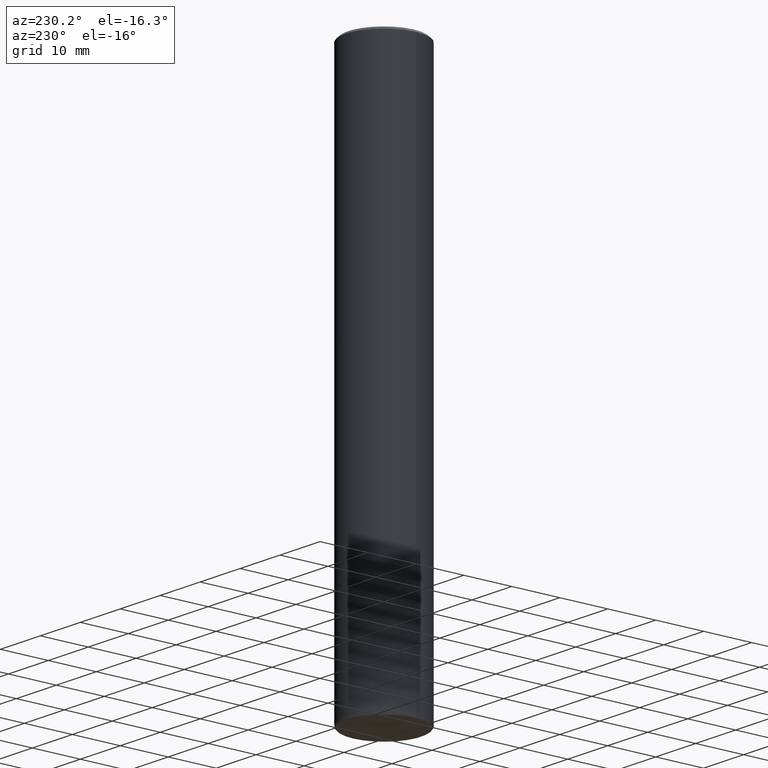
[diagram: clean part render]
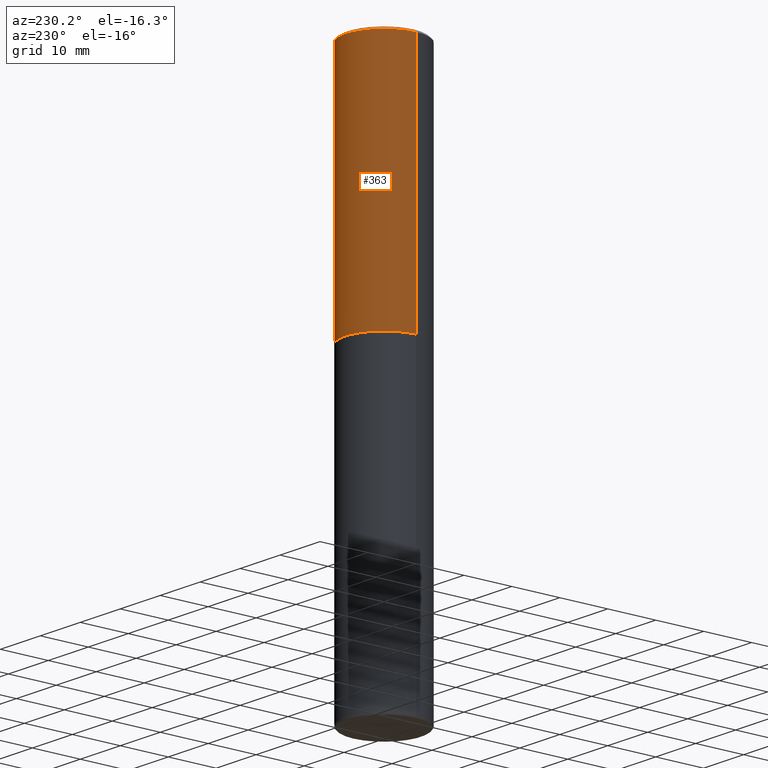
[diagram: same view with one face highlighted and labeled with its STEP entity id]
A machine part, auxiliary view. The second image highlights one B-rep face of the part: STEP entity #363.
In plain terms, the highlighted cylindrical surface (partial cylindrical patch) has radius 7.9997 mm, axis along (-0, 0, 1).
Its self-contained STEP definition (entity closure, byte-faithful):
#12 = VERTEX_POINT ( 'NONE', #257 ) ;
#26 = CARTESIAN_POINT ( 'NONE',  ( -0.3149500000000001743, 2.237854346276436774E-15, -1.549218606675783237E-29 ) ) ;
#31 = AXIS2_PLACEMENT_3D ( 'NONE', #315, #282, #319 ) ;
#32 = CYLINDRICAL_SURFACE ( 'NONE', #295, 0.3149500000000001743 ) ;
#42 = EDGE_CURVE ( 'NONE', #60, #12, #52, .T. ) ;
#52 = CIRCLE ( 'NONE', #31, 0.3149499999999999522 ) ;
#56 = EDGE_LOOP ( 'NONE', ( #210, #175, #66, #299 ) ) ;
#60 = VERTEX_POINT ( 'NONE', #161 ) ;
#62 = CARTESIAN_POINT ( 'NONE',  ( 0.3149500000000002853, -9.206337994261599363E-15, -2.006899999999999906 ) ) ;
#66 = ORIENTED_EDGE ( 'NONE', *, *, #42, .F. ) ;
#101 = EDGE_CURVE ( 'NONE', #298, #141, #265, .T. ) ;
#132 = DIRECTION ( 'NONE',  ( 1.000000000000000000, -6.982962677686267499E-15, 0.000000000000000000 ) ) ;
#141 = VERTEX_POINT ( 'NONE', #320 ) ;
#156 = DIRECTION ( 'NONE',  ( -2.445468806185136877E-29, 3.491481338843145188E-15, 1.000000000000000000 ) ) ;
#159 = CARTESIAN_POINT ( 'NONE',  ( 0.000000000000000000, 0.000000000000000000, 0.000000000000000000 ) ) ;
#161 = CARTESIAN_POINT ( 'NONE',  ( 0.3149499999999999522, -2.230543471175006661E-15, -0.02000000000000006981 ) ) ;
#166 = CARTESIAN_POINT ( 'NONE',  ( 4.907811347132950267E-29, -7.007053898924307914E-15, -2.006899999999999906 ) ) ;
#175 = ORIENTED_EDGE ( 'NONE', *, *, #229, .T. ) ;
#179 = CARTESIAN_POINT ( 'NONE',  ( 0.3149500000000001743, -2.199284095337290660E-15, 1.535751875536930690E-29 ) ) ;
#183 = LINE ( 'NONE', #26, #288 ) ;
#210 = ORIENTED_EDGE ( 'NONE', *, *, #101, .T. ) ;
#229 = EDGE_CURVE ( 'NONE', #141, #12, #183, .T. ) ;
#254 = EDGE_CURVE ( 'NONE', #298, #60, #348, .T. ) ;
#257 = CARTESIAN_POINT ( 'NONE',  ( -0.3149499999999999522, 2.129454468560426178E-15, -0.02000000000000006981 ) ) ;
#265 = CIRCLE ( 'NONE', #335, 0.3149500000000002853 ) ;
#277 = DIRECTION ( 'NONE',  ( -2.445468806185136877E-29, 3.491481338843145188E-15, 1.000000000000000000 ) ) ;
#282 = DIRECTION ( 'NONE',  ( -2.445468806185136597E-29, 3.491481338843145583E-15, 1.000000000000000000 ) ) ;
#288 = VECTOR ( 'NONE', #156, 39.37007874015748143 ) ;
#290 = DIRECTION ( 'NONE',  ( -2.445468806185136597E-29, 3.491481338843145583E-15, 1.000000000000000000 ) ) ;
#295 = AXIS2_PLACEMENT_3D ( 'NONE', #159, #393, #383 ) ;
#298 = VERTEX_POINT ( 'NONE', #62 ) ;
#299 = ORIENTED_EDGE ( 'NONE', *, *, #254, .F. ) ;
#302 = VECTOR ( 'NONE', #277, 39.37007874015748143 ) ;
#315 = CARTESIAN_POINT ( 'NONE',  ( 4.890937612370289799E-31, -6.982962677686315028E-17, -0.02000000000000006981 ) ) ;
#319 = DIRECTION ( 'NONE',  ( 1.000000000000000000, -6.982962677686266711E-15, 0.000000000000000000 ) ) ;
#320 = CARTESIAN_POINT ( 'NONE',  ( -0.3149500000000002853, -1.300587416574145677E-15, -2.006899999999999906 ) ) ;
#322 = FACE_OUTER_BOUND ( 'NONE', #56, .T. ) ;
#335 = AXIS2_PLACEMENT_3D ( 'NONE', #166, #290, #132 ) ;
#348 = LINE ( 'NONE', #179, #302 ) ;
#363 = ADVANCED_FACE ( 'NONE', ( #322 ), #32, .T. ) ;
#383 = DIRECTION ( 'NONE',  ( 1.000000000000000000, -6.982962677686265922E-15, 4.876176775795935232E-29 ) ) ;
#393 = DIRECTION ( 'NONE',  ( -2.445468806185136597E-29, 3.491481338843145583E-15, 1.000000000000000000 ) ) ;